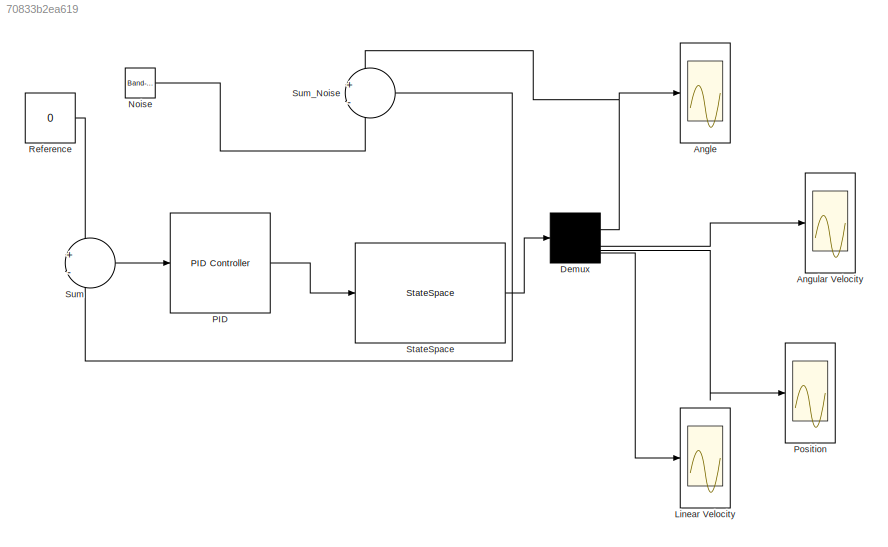
MODEL slx_70833b2ea619
KIND model
CONFIG AbsTol = auto
CONFIG EnableMultiTasking = off
CONFIG FixedStep = auto
CONFIG MaxStep = 0.001
CONFIG MinStep = auto
CONFIG RelTol = 1e-3
CONFIG SampleTimeConstraint = Unconstrained
CONFIG SolverName = ode45
CONFIG StartTime = 0.0
CONFIG StopTime = 10
BLOCK [Scope] Angle
  Floating = off
  NumInputPorts = 1
  ScopeSpecificationString = Simulink.scopes.TimeScopeBlockCfg('CurrentConfiguration', extmgr.ConfigurationSet(extmgr.Configuration('Core','General UI',true),extmgr.Configuration('Core','Source UI',true),extmgr.Configuration('Sources','WiredSimulink',true),extmgr.Configuration('Visuals','Time Domain',true),extmgr.Configuration('Tools','Plot Navigation',true),extmgr.Configuration('Tools','Measurements',true)),'Version','2024b'...<+1ch>
BLOCK [Scope] Angular Velocity
  Floating = off
  NumInputPorts = 1
  ScopeSpecificationString = Simulink.scopes.TimeScopeBlockCfg('CurrentConfiguration', extmgr.ConfigurationSet(extmgr.Configuration('Core','General UI',true),extmgr.Configuration('Core','Source UI',true),extmgr.Configuration('Sources','WiredSimulink',true),extmgr.Configuration('Visuals','Time Domain',true,'SerializedDisplays',{struct('MinYLimReal','-211.78492','MaxYLimReal','239.82258','YLabelReal','','MinYLimMag',' 0.00000',...<+1485ch>
BLOCK [Demux] Demux
BLOCK [Scope] Linear Velocity
  Floating = off
  NumInputPorts = 1
  ScopeSpecificationString = Simulink.scopes.TimeScopeBlockCfg('CurrentConfiguration', extmgr.ConfigurationSet(extmgr.Configuration('Core','General UI',true),extmgr.Configuration('Core','Source UI',true),extmgr.Configuration('Sources','WiredSimulink',true),extmgr.Configuration('Visuals','Time Domain',true,'SerializedDisplays',{struct('MinYLimReal','-929.79143','MaxYLimReal','1073.64315','YLabelReal','','MinYLimMag',' 0.00000'...<+1486ch>
BLOCK [Reference] Noise  REF=simulink/Sources/Band-Limited
White Noise
  SourceBlock = simulink/Sources/Band-Limited\nWhite Noise
  SourceType = Band-Limited White Noise.
BLOCK [Reference] PID  REF=slpidlib/PID Controller
  SourceBlock = slpidlib/PID Controller
  SourceType = PID 1dof
BLOCK [Scope] Position
  Floating = off
  NumInputPorts = 1
  ScopeSpecificationString = Simulink.scopes.TimeScopeBlockCfg('CurrentConfiguration', extmgr.ConfigurationSet(extmgr.Configuration('Core','General UI',true),extmgr.Configuration('Core','Source UI',true),extmgr.Configuration('Sources','WiredSimulink',true),extmgr.Configuration('Visuals','Time Domain',true,'SerializedDisplays',{struct('MinYLimReal','-24.19504','MaxYLimReal','114.44691','YLabelReal','','MinYLimMag','0.00000','M...<+1494ch>
BLOCK [Constant] Reference
  Value = 0
BLOCK [StateSpace] StateSpace
  A = [0 1 0 0;49.05 0 0 0;0 0 0 1;0 0 0 0]
  B = [0;25;0;111.111111111111]
  C = [1 0 0 0;0 1 0 0;0 0 1 0;0 0 0 1]
  D = [0;0;0;0]
  InitialCondition = [0.017; 0; 0; 0]
BLOCK [Sum] Sum
  Inputs = +-
BLOCK [Sum] Sum_Noise
  Inputs = +-
NET Demux:1 -> Angle:1, Sum_Noise:1
LINE Demux:2 -> Angular Velocity:1
LINE Demux:3 -> Position:1
LINE Demux:4 -> Linear Velocity:1
LINE Noise:1 -> Sum_Noise:2
LINE PID:1 -> StateSpace:1
LINE Reference:1 -> Sum:1
LINE StateSpace:1 -> Demux:1
LINE Sum:1 -> PID:1
LINE Sum_Noise:1 -> Sum:2
note: NET lines group one-source signal fan-out (src -> all destinations, sorted); 1:1 wires keep LINE
